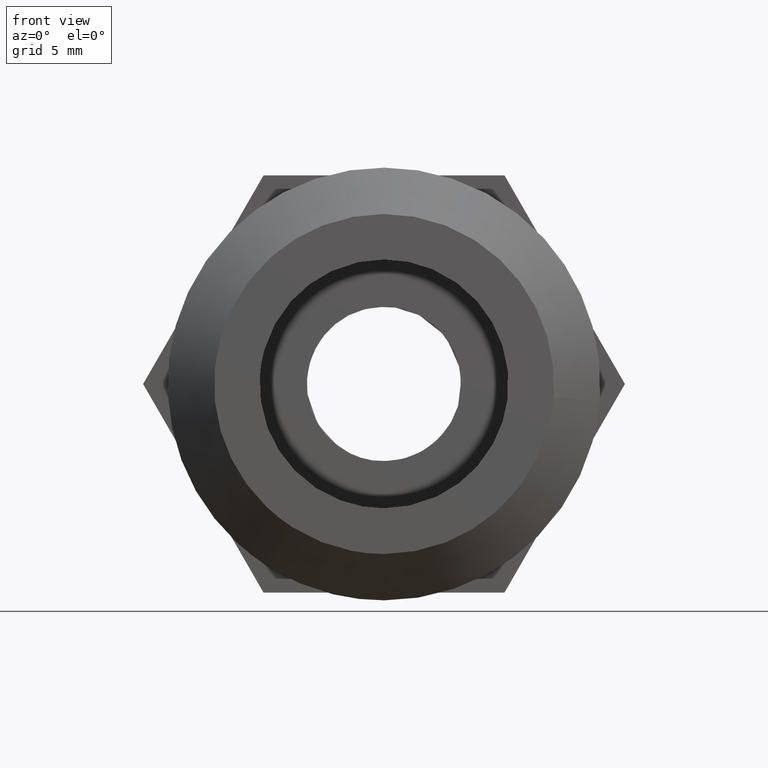
[diagram: clean part render]
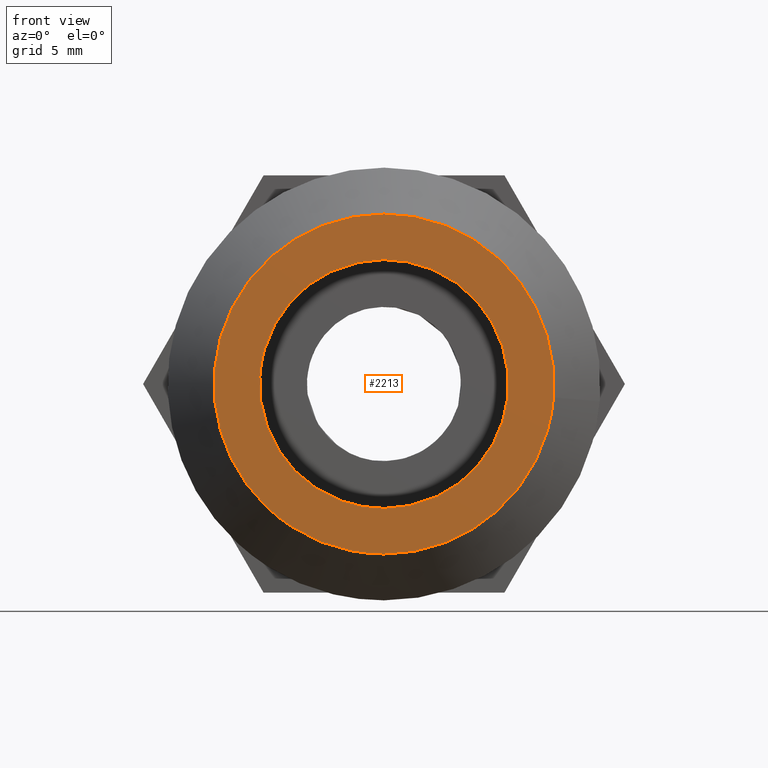
[diagram: same view with one face highlighted and labeled with its STEP entity id]
A machine part, front view. The second image highlights one B-rep face of the part: STEP entity #2213.
In plain terms, the highlighted face is a freeform B-spline surface patch.
Its self-contained STEP definition (entity closure, byte-faithful):
#520=CARTESIAN_POINT('',(-4.000000189989803,-7.993728203840220,-0.950166069139442));
#521=VERTEX_POINT('',#520);
#527=CARTESIAN_POINT('',(-4.000000189989805,0.0,8.050000382354480));
#528=VERTEX_POINT('',#527);
#529=CARTESIAN_POINT('',(-4.000000189989803,-7.993728203840220,-0.950166069139442));
#530=CARTESIAN_POINT('',(-4.000000189989806,-8.050000382354480,-0.476749352794286));
#531=CARTESIAN_POINT('',(-4.000000189989805,-8.050000382354480,0.0));
#532=CARTESIAN_POINT('',(-4.000000189989805,-8.050000382354481,8.050000382354481));
#533=CARTESIAN_POINT('',(-4.000000189989805,0.0,8.050000382354480));
#541=(BOUNDED_CURVE()B_SPLINE_CURVE(2,(#529,#530,#531,#532,#533),.UNSPECIFIED.,.F.,.U.)B_SPLINE_CURVE_WITH_KNOTS((3,2,3),(0.229562675738278,0.250000000000000,0.500000000000000),.UNSPECIFIED.)CURVE()GEOMETRIC_REPRESENTATION_ITEM()RATIONAL_B_SPLINE_CURVE((0.956027150552907,0.976056185252200,1.0,0.707106781186548,1.0))REPRESENTATION_ITEM(''));
#542=EDGE_CURVE('',#521,#528,#541,.T.);
#544=CARTESIAN_POINT('',(-4.000000189989808,8.034985516539697,0.491440642300314));
#545=VERTEX_POINT('',#544);
#546=CARTESIAN_POINT('',(-4.000000189989805,0.0,8.050000382354480));
#547=CARTESIAN_POINT('',(-4.000000189989805,7.572684433003559,8.050000382354480));
#548=CARTESIAN_POINT('',(-4.000000189989808,8.034985516539697,0.491440642300314));
#556=(BOUNDED_CURVE()B_SPLINE_CURVE(2,(#546,#547,#548),.UNSPECIFIED.,.F.,.U.)B_SPLINE_CURVE_WITH_KNOTS((3,3),(0.500000000000000,0.739332967580403),.UNSPECIFIED.)CURVE()GEOMETRIC_REPRESENTATION_ITEM()RATIONAL_B_SPLINE_CURVE((1.0,0.719603987028800,0.976072053114485))REPRESENTATION_ITEM(''));
#557=EDGE_CURVE('',#528,#545,#556,.T.);
#631=CARTESIAN_POINT('',(-4.000000189989805,0.0,-8.050000382354480));
#632=VERTEX_POINT('',#631);
#633=CARTESIAN_POINT('',(-4.000000189989808,8.034985516539697,0.491440642300314));
#634=CARTESIAN_POINT('',(-4.000000189989806,8.050000382354480,0.245949631589642));
#635=CARTESIAN_POINT('',(-4.000000189989805,8.050000382354480,0.0));
#636=CARTESIAN_POINT('',(-4.000000189989805,8.050000382354481,-8.050000382354481));
#637=CARTESIAN_POINT('',(-4.000000189989805,0.0,-8.050000382354480));
#645=(BOUNDED_CURVE()B_SPLINE_CURVE(2,(#633,#634,#635,#636,#637),.UNSPECIFIED.,.F.,.U.)B_SPLINE_CURVE_WITH_KNOTS((3,2,3),(0.739332967580405,0.750000000000000,1.0),.UNSPECIFIED.)CURVE()GEOMETRIC_REPRESENTATION_ITEM()RATIONAL_B_SPLINE_CURVE((0.976072053114487,0.987502794157749,1.0,0.707106781186548,1.0))REPRESENTATION_ITEM(''));
#646=EDGE_CURVE('',#545,#632,#645,.T.);
#648=CARTESIAN_POINT('',(-4.000000189989805,0.0,-8.050000382354480));
#649=CARTESIAN_POINT('',(-4.000000189989805,-7.149813888909965,-8.050000382354480));
#650=CARTESIAN_POINT('',(-4.000000189989803,-7.993728203840220,-0.950166069139442));
#658=(BOUNDED_CURVE()B_SPLINE_CURVE(2,(#648,#649,#650),.UNSPECIFIED.,.F.,.U.)B_SPLINE_CURVE_WITH_KNOTS((3,3),(0.0,0.229562675738278),.UNSPECIFIED.)CURVE()GEOMETRIC_REPRESENTATION_ITEM()RATIONAL_B_SPLINE_CURVE((1.0,0.731050595934348,0.956027150552907))REPRESENTATION_ITEM(''));
#659=EDGE_CURVE('',#632,#521,#658,.T.);
#908=CARTESIAN_POINT('',(-4.000000189989704,5.916359008921856,-9.273440977972292));
#909=VERTEX_POINT('',#908);
#915=CARTESIAN_POINT('',(-4.000000189989805,0.0,11.000000522472000));
#916=VERTEX_POINT('',#915);
#917=CARTESIAN_POINT('',(-4.000000189989805,0.0,11.000000522472000));
#918=CARTESIAN_POINT('',(-4.000000189989806,11.000000522472002,11.000000522472002));
#919=CARTESIAN_POINT('',(-4.000000189989805,11.000000522472000,0.0));
#920=CARTESIAN_POINT('',(-4.000000189989805,11.000000522472003,-6.030130502575222));
#921=CARTESIAN_POINT('',(-4.000000189989705,5.916359008921856,-9.273440977972292));
#929=(BOUNDED_CURVE()B_SPLINE_CURVE(2,(#917,#918,#919,#920,#921),.UNSPECIFIED.,.F.,.U.)B_SPLINE_CURVE_WITH_KNOTS((3,2,3),(0.0,0.250000000000000,0.407950112627518),.UNSPECIFIED.)CURVE()GEOMETRIC_REPRESENTATION_ITEM()RATIONAL_B_SPLINE_CURVE((1.0,0.707106781186547,1.0,0.814949932402316,0.863729296954904))REPRESENTATION_ITEM(''));
#930=EDGE_CURVE('',#916,#909,#929,.T.);
#932=CARTESIAN_POINT('',(-4.000001214701317,-10.966090230022751,-0.863049255680150));
#933=VERTEX_POINT('',#932);
#934=CARTESIAN_POINT('',(-4.000001214701317,-10.966090230022745,-0.863049255680150));
#935=CARTESIAN_POINT('',(-4.000001196092878,-10.999999519470377,-0.432190737955364));
#936=CARTESIAN_POINT('',(-4.000001175962383,-10.999999539538820,0.000000077358453));
#937=CARTESIAN_POINT('',(-4.000000663606627,-11.000000050315167,11.000000559631518));
#938=CARTESIAN_POINT('',(-4.000000189989805,0.0,11.000000522472000));
#946=(BOUNDED_CURVE()B_SPLINE_CURVE(2,(#934,#935,#936,#937,#938),.UNSPECIFIED.,.F.,.U.)B_SPLINE_CURVE_WITH_KNOTS((3,2,3),(0.736331312480764,0.750000000000000,1.0),.UNSPECIFIED.)CURVE()GEOMETRIC_REPRESENTATION_ITEM()RATIONAL_B_SPLINE_CURVE((0.969723380897682,0.983986136462143,1.0,0.707106781186547,1.0))REPRESENTATION_ITEM(''));
#947=EDGE_CURVE('',#933,#916,#946,.T.);
#1051=CARTESIAN_POINT('',(-4.000000189989805,0.0,-11.000000522472000));
#1052=VERTEX_POINT('',#1051);
#1053=CARTESIAN_POINT('',(-4.000000189989805,0.0,-11.000000522472000));
#1054=CARTESIAN_POINT('',(-4.000000702345560,-10.168296085386599,-11.000000482273064));
#1055=CARTESIAN_POINT('',(-4.000001214701317,-10.966090230022745,-0.863049255680150));
#1063=(BOUNDED_CURVE()B_SPLINE_CURVE(2,(#1053,#1054,#1055),.UNSPECIFIED.,.F.,.U.)B_SPLINE_CURVE_WITH_KNOTS((3,3),(0.500000000000000,0.736331312480764),.UNSPECIFIED.)CURVE()GEOMETRIC_REPRESENTATION_ITEM()RATIONAL_B_SPLINE_CURVE((1.0,0.723120644724405,0.969723380897682))REPRESENTATION_ITEM(''));
#1064=EDGE_CURVE('',#1052,#933,#1063,.T.);
#1066=CARTESIAN_POINT('',(-4.000000189989705,5.916359008921856,-9.273440977972292));
#1067=CARTESIAN_POINT('',(-4.000000189989804,3.210108761645940,-11.000000522472002));
#1068=CARTESIAN_POINT('',(-4.000000189989805,0.0,-11.000000522472000));
#1076=(BOUNDED_CURVE()B_SPLINE_CURVE(2,(#1066,#1067,#1068),.UNSPECIFIED.,.F.,.U.)B_SPLINE_CURVE_WITH_KNOTS((3,3),(0.407950112627518,0.500000000000000),.UNSPECIFIED.)CURVE()GEOMETRIC_REPRESENTATION_ITEM()RATIONAL_B_SPLINE_CURVE((0.863729296954904,0.892156848784232,1.0))REPRESENTATION_ITEM(''));
#1077=EDGE_CURVE('',#909,#1052,#1076,.T.);
#2196=CARTESIAN_POINT('',(-4.000000189989805,-12.095500940949160,12.098901151587491));
#2197=CARTESIAN_POINT('',(-4.000000189989805,-12.095500940949160,-12.098901151587491));
#2198=CARTESIAN_POINT('',(-4.000000189989805,12.094671083321931,12.098901151587491));
#2199=CARTESIAN_POINT('',(-4.000000189989805,12.094671083321931,-12.098901151587491));
#2200=B_SPLINE_SURFACE_WITH_KNOTS('',1,1,((#2196,#2198),(#2197,#2199)),.UNSPECIFIED.,.F.,.F.,.U.,(2,2),(2,2),(0.0,24.197802303174981),(0.0,24.190172024271089),.UNSPECIFIED.);
#2201=ORIENTED_EDGE('',*,*,#930,.T.);
#2202=ORIENTED_EDGE('',*,*,#1077,.T.);
#2203=ORIENTED_EDGE('',*,*,#1064,.T.);
#2204=ORIENTED_EDGE('',*,*,#947,.T.);
#2205=EDGE_LOOP('',(#2201,#2202,#2203,#2204));
#2206=FACE_OUTER_BOUND('',#2205,.T.);
#2207=ORIENTED_EDGE('',*,*,#557,.F.);
#2208=ORIENTED_EDGE('',*,*,#542,.F.);
#2209=ORIENTED_EDGE('',*,*,#659,.F.);
#2210=ORIENTED_EDGE('',*,*,#646,.F.);
#2211=EDGE_LOOP('',(#2207,#2208,#2209,#2210));
#2212=FACE_BOUND('',#2211,.T.);
#2213=ADVANCED_FACE('',(#2206,#2212),#2200,.F.);